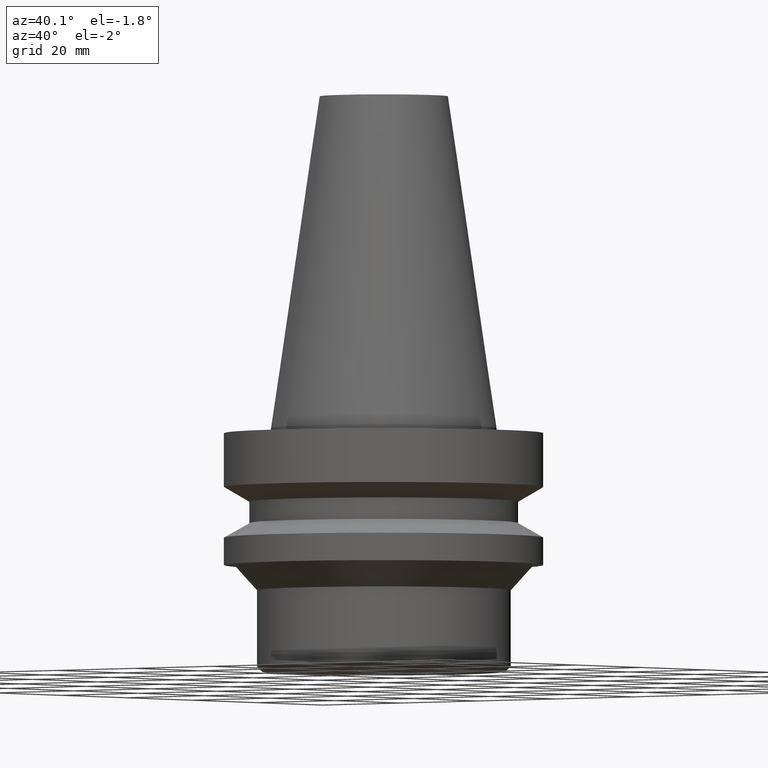
[diagram: clean part render]
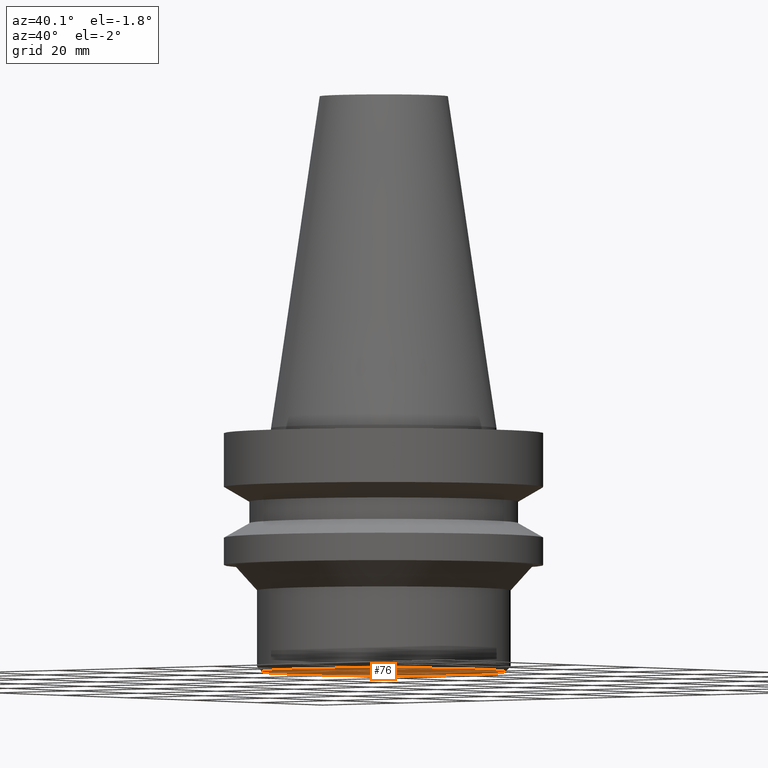
[diagram: same view with one face highlighted and labeled with its STEP entity id]
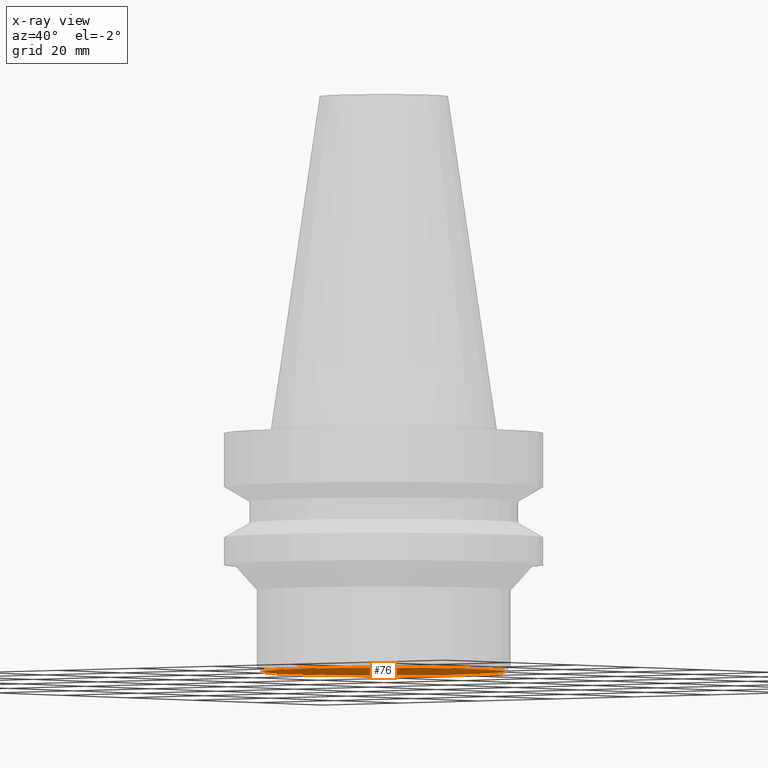
[diagram: x-ray of the same camera — body ghosted, the highlighted face saturated]
A machine part, auxiliary view. The second image highlights one B-rep face of the part: STEP entity #76.
The next image is the same camera in x-ray: the body ghosted, the highlighted face saturated — about 0% of this face is hidden behind the body in this view.
In plain terms, the highlighted planar face has unit normal (0, 0, -1).
Its self-contained STEP definition (entity closure, byte-faithful):
#76=ADVANCED_FACE('',(#92),#93,.T.);
#92=FACE_OUTER_BOUND('',#132,.T.);
#93=PLANE('',#133);
#132=EDGE_LOOP('',(#174));
#133=AXIS2_PLACEMENT_3D('',#175,#176,#177);
#174=ORIENTED_EDGE('',*,*,#239,.F.);
#175=CARTESIAN_POINT('',(2.93915231795365E-015,12.0,-48.0));
#176=DIRECTION('',(6.12323399573677E-017,1.22464679914735E-016,-1.0));
#177=DIRECTION('',(1.23259516440783E-032,-1.0,-1.22464679914735E-016));
#239=EDGE_CURVE('',#253,#253,#254,.T.);
#253=VERTEX_POINT('',#279);
#254=CIRCLE('',#280,24.0000000000001);
#279=CARTESIAN_POINT('',(2.93915231795365E-015,24.0000000000001,-48.0));
#280=AXIS2_PLACEMENT_3D('',#306,#307,#308);
#306=CARTESIAN_POINT('',(2.93915231795365E-015,5.87830463590729E-015,-48.0));
#307=DIRECTION('',(-6.12323399573677E-017,-1.22464679914735E-016,1.0));
#308=DIRECTION('',(-1.23259516440783E-032,1.0,1.22464679914735E-016));